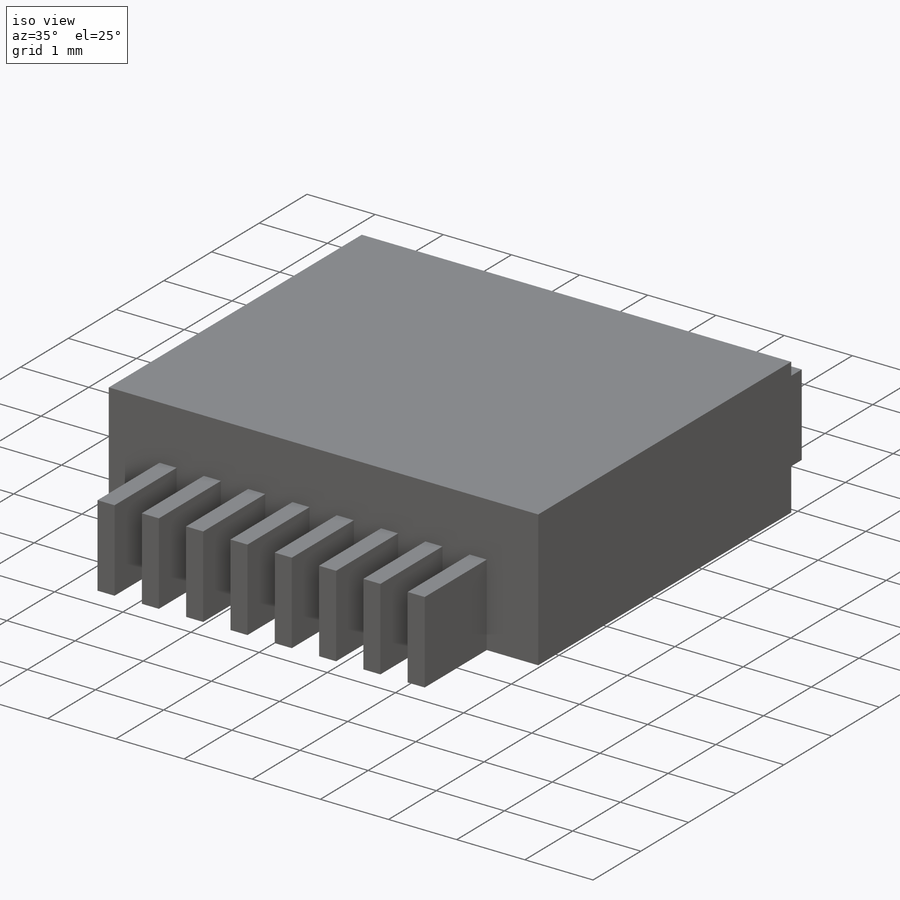
[diagram: iso view]
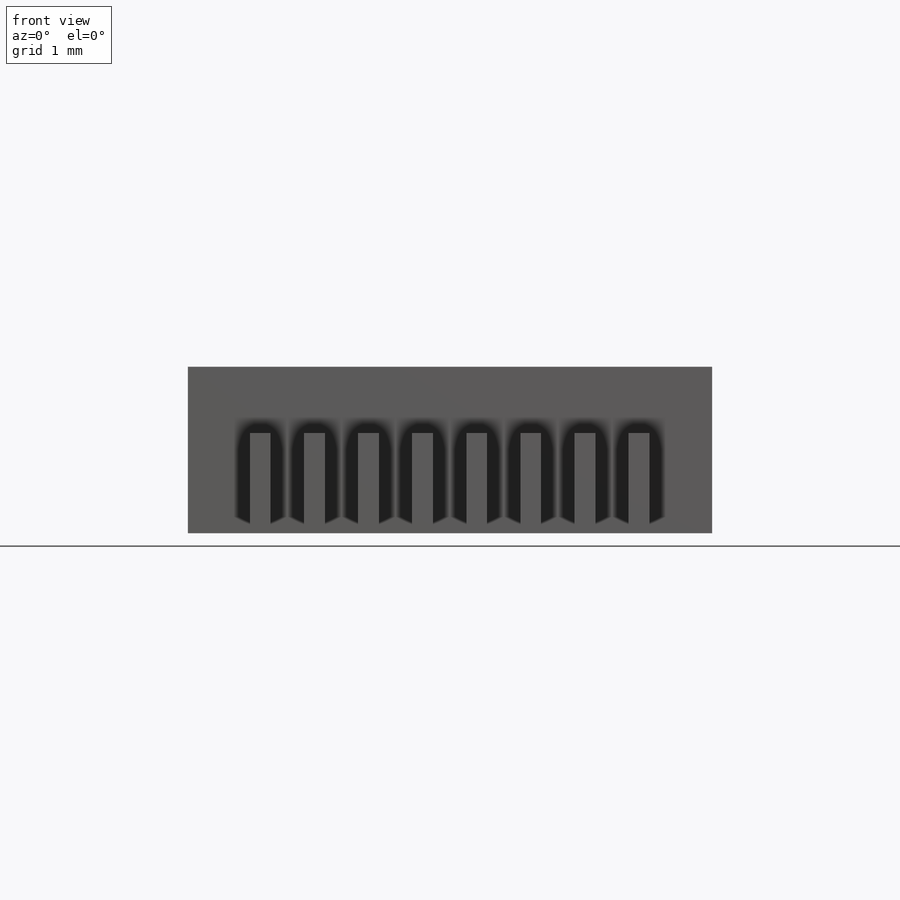
[diagram: front view]
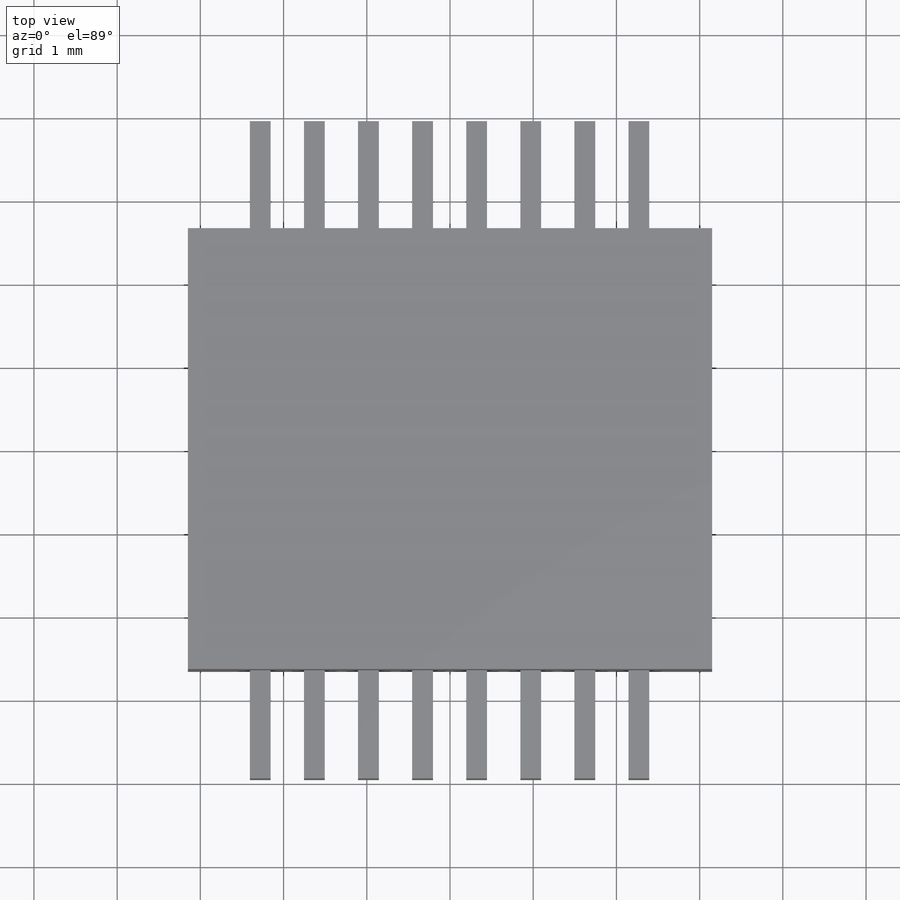
[diagram: top view]
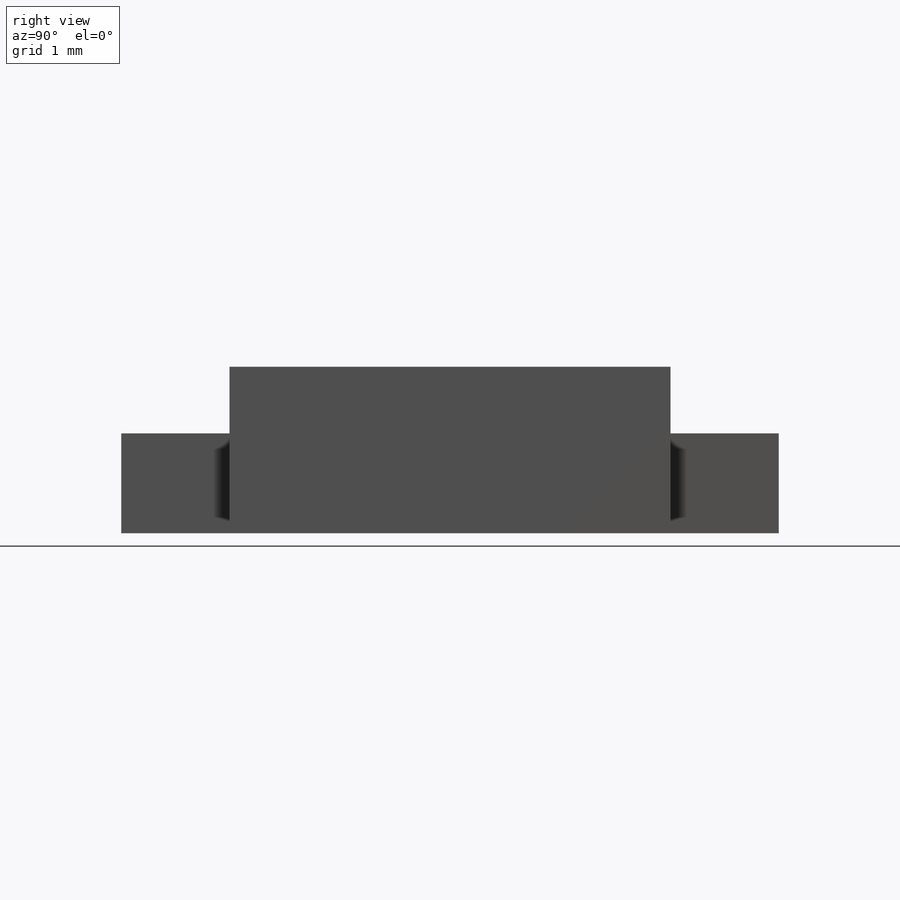
[diagram: right view]
SOLIDWORKS PART (.sldprt)
format: sldprt  version: not decoded by parser v0  size: 186,880 bytes
history: native  units: mm
features: sketch x2, extrude x2, material x1, pattern_linear x1, mirror x1 (+16 scaffold rows collapsed)
feature tree (23):
  scaffold x16  (default folders/planes/origin — collapsed)
  material  "Material <not specified>"
  sketch  "Sketch1"  dims[D1=5.3mm D2=6.3mm]
  extrude  "Boss-Extrude1"  Depth=2mm
  sketch  "Sketch2"  dims[D1=2.28mm D2=0.25mm D3=1.2mm]
  extrude  "Boss-Extrude2"  Depth=1.3mm
  pattern_linear  "LPattern1"  Count1=8 Count2=1 Spacing1=0.65mm Spacing2=10mm
  mirror  "Mirror1"
decode coverage: 5 of 6 modeling features carry decoded parameters
note: suppression state not decoded; provenance and decode notes live in map.json
